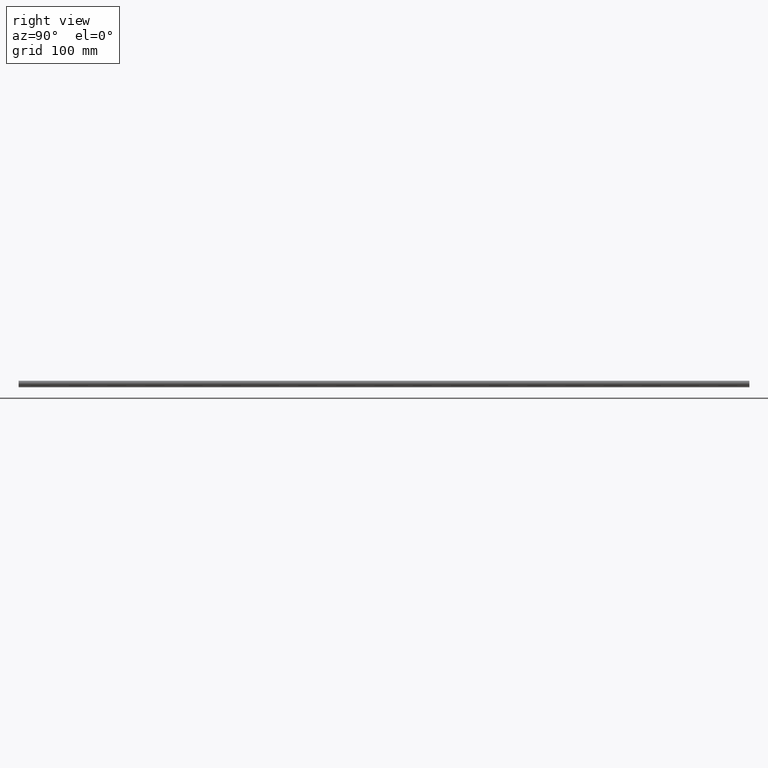
[diagram: clean part render]
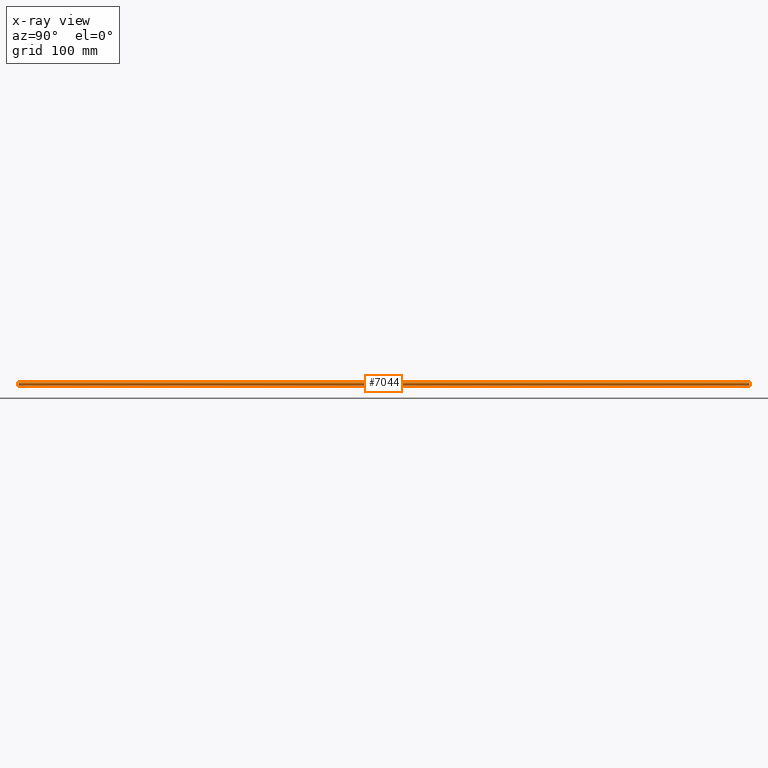
[diagram: x-ray — body ghosted, one internal face saturated and labeled with its STEP entity id]
A machine part, right view, then the same camera in x-ray: the body is ghosted and one INTERNAL B-rep face — a face not visible from any outside direction — is saturated and labeled: STEP entity #7044.
In plain terms, the highlighted cylindrical surface (edge-blend (fillet) strip) has radius 1.75 mm, axis along (0, 1, 0).
Its self-contained STEP definition (entity closure, byte-faithful):
#532 = VECTOR ( 'NONE', #7331, 1000.000000000000000 ) ;
#599 = ORIENTED_EDGE ( 'NONE', *, *, #6543, .F. ) ;
#672 = EDGE_LOOP ( 'NONE', ( #913, #3166, #599, #4523 ) ) ;
#913 = ORIENTED_EDGE ( 'NONE', *, *, #6667, .T. ) ;
#1244 = CARTESIAN_POINT ( 'NONE',  ( 0.0000000000000000000, -12.40000000000000000, 1.749999999999999800 ) ) ;
#1551 = CARTESIAN_POINT ( 'NONE',  ( 0.0000000000000000000, -12.40000000000000000, 0.0000000000000000000 ) ) ;
#1616 = CIRCLE ( 'NONE', #6489, 1.749999999999999800 ) ;
#2015 = CYLINDRICAL_SURFACE ( 'NONE', #8080, 1.749999999999999800 ) ;
#2097 = VERTEX_POINT ( 'NONE', #2757 ) ;
#2195 = DIRECTION ( 'NONE',  ( 0.0000000000000000000, 0.0000000000000000000, 1.000000000000000000 ) ) ;
#2219 = LINE ( 'NONE', #4091, #532 ) ;
#2608 = AXIS2_PLACEMENT_3D ( 'NONE', #6601, #2748, #7280 ) ;
#2626 = CIRCLE ( 'NONE', #2608, 1.749999999999999800 ) ;
#2748 = DIRECTION ( 'NONE',  ( 0.0000000000000000000, 1.000000000000000000, 0.0000000000000000000 ) ) ;
#2757 = CARTESIAN_POINT ( 'NONE',  ( 2.143131898507867600E-016, -12.40000000000000000, -1.749999999999999800 ) ) ;
#2895 = DIRECTION ( 'NONE',  ( 0.0000000000000000000, 1.000000000000000000, 0.0000000000000000000 ) ) ;
#3166 = ORIENTED_EDGE ( 'NONE', *, *, #7036, .T. ) ;
#3483 = VERTEX_POINT ( 'NONE', #5684 ) ;
#4091 = CARTESIAN_POINT ( 'NONE',  ( 2.143131898507867600E-016, -12.40000000000000000, -1.749999999999999800 ) ) ;
#4523 = ORIENTED_EDGE ( 'NONE', *, *, #5381, .F. ) ;
#5085 = DIRECTION ( 'NONE',  ( 0.0000000000000000000, 1.000000000000000000, 0.0000000000000000000 ) ) ;
#5113 = CARTESIAN_POINT ( 'NONE',  ( 0.0000000000000000000, -12.40000000000000000, 1.749999999999999800 ) ) ;
#5261 = VECTOR ( 'NONE', #5085, 1000.000000000000000 ) ;
#5381 = EDGE_CURVE ( 'NONE', #5877, #3483, #6995, .T. ) ;
#5429 = FACE_OUTER_BOUND ( 'NONE', #672, .T. ) ;
#5684 = CARTESIAN_POINT ( 'NONE',  ( 0.0000000000000000000, 737.6000000000000200, 1.749999999999999800 ) ) ;
#5877 = VERTEX_POINT ( 'NONE', #5113 ) ;
#6039 = DIRECTION ( 'NONE',  ( 0.0000000000000000000, 1.000000000000000000, 0.0000000000000000000 ) ) ;
#6237 = CARTESIAN_POINT ( 'NONE',  ( 2.143131898507867600E-016, 737.6000000000000200, -1.749999999999999800 ) ) ;
#6489 = AXIS2_PLACEMENT_3D ( 'NONE', #6759, #2895, #7426 ) ;
#6543 = EDGE_CURVE ( 'NONE', #3483, #7193, #2626, .T. ) ;
#6601 = CARTESIAN_POINT ( 'NONE',  ( 0.0000000000000000000, 737.6000000000000200, 0.0000000000000000000 ) ) ;
#6667 = EDGE_CURVE ( 'NONE', #5877, #2097, #1616, .T. ) ;
#6759 = CARTESIAN_POINT ( 'NONE',  ( 0.0000000000000000000, -12.40000000000000000, 0.0000000000000000000 ) ) ;
#6995 = LINE ( 'NONE', #1244, #5261 ) ;
#7036 = EDGE_CURVE ( 'NONE', #2097, #7193, #2219, .T. ) ;
#7044 = ADVANCED_FACE ( 'NONE', ( #5429 ), #2015, .T. ) ;
#7193 = VERTEX_POINT ( 'NONE', #6237 ) ;
#7280 = DIRECTION ( 'NONE',  ( 0.0000000000000000000, 0.0000000000000000000, 1.000000000000000000 ) ) ;
#7331 = DIRECTION ( 'NONE',  ( 0.0000000000000000000, 1.000000000000000000, 0.0000000000000000000 ) ) ;
#7426 = DIRECTION ( 'NONE',  ( 0.0000000000000000000, 0.0000000000000000000, 1.000000000000000000 ) ) ;
#8080 = AXIS2_PLACEMENT_3D ( 'NONE', #1551, #6039, #2195 ) ;